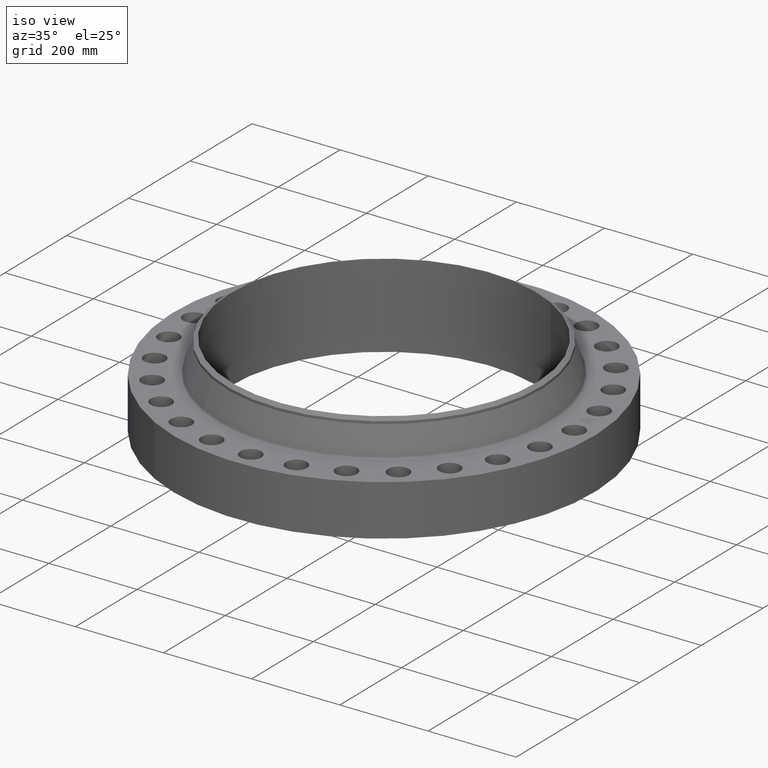
[diagram: clean part render]
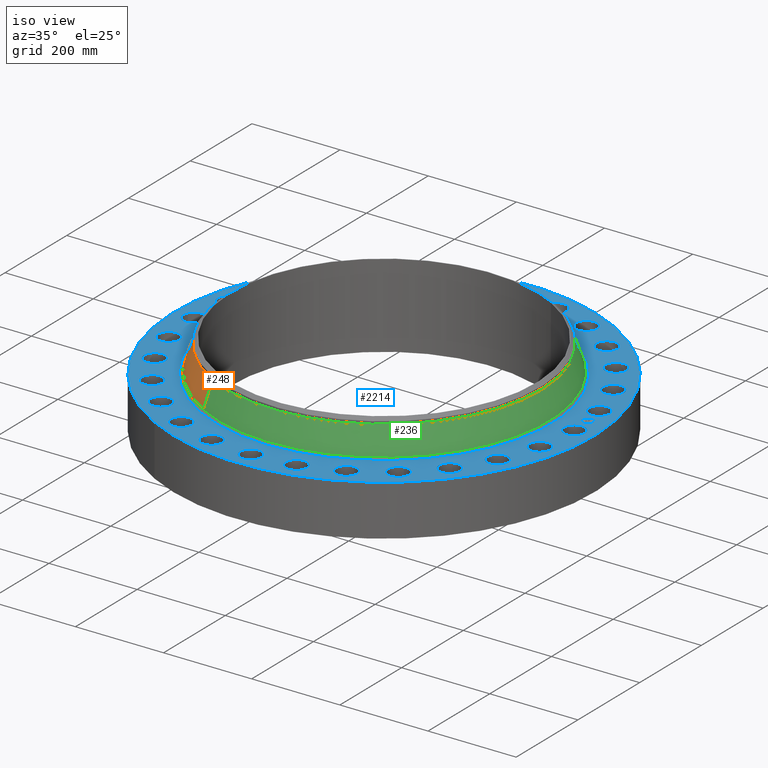
[diagram: same view with three faces highlighted in distinct colors, each labeled with its STEP entity id]
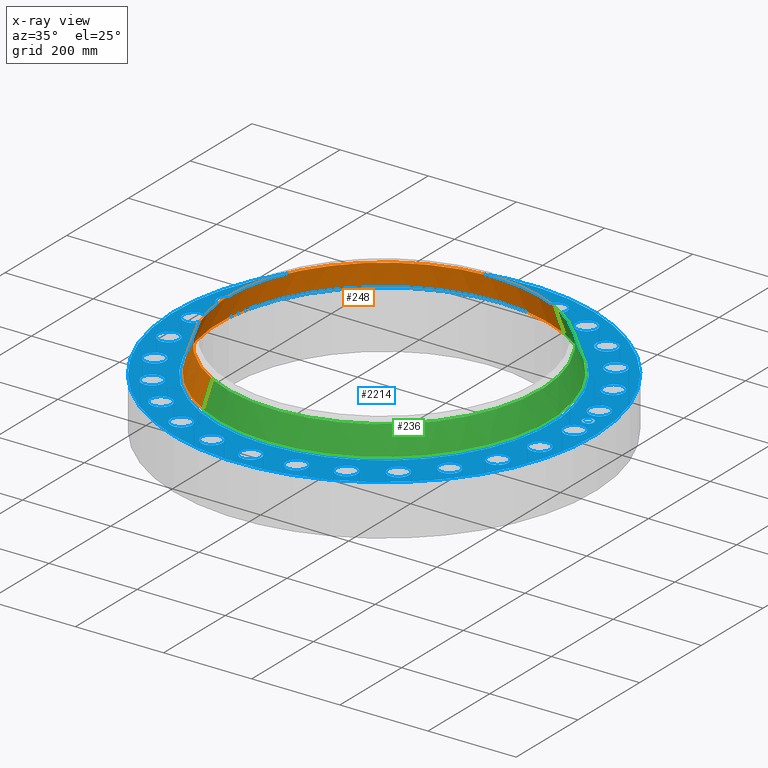
[diagram: x-ray of the same camera — body ghosted, the three highlighted faces saturated]
A machine part, iso view with three faces highlighted in distinct colors.
The next image is the same camera in x-ray (body ghosted, the three faces saturated) — at least one of them is partly hidden behind the body in this view.
Their STEP definitions:

[orange] entity #248 — the highlighted conical surface has half-angle 18.198 deg.
#196=AXIS2_PLACEMENT_3D('Circle Axis2P3D',#194,#195,$) ;
#209=AXIS2_PLACEMENT_3D('Cone Axis2P3D',#206,#207,#208) ;
#239=AXIS2_PLACEMENT_3D('Circle Axis2P3D',#237,#238,$) ;
#167=CARTESIAN_POINT('Vertex',(7.07319590626,12.9473982597,4.73192659032)) ;
#174=CARTESIAN_POINT('Vertex',(-7.07319590626,-12.9473982597,4.73192659032)) ;
#194=CARTESIAN_POINT('Axis2P3D Location',(0.,0.,4.73192659032)) ;
#206=CARTESIAN_POINT('Axis2P3D Location',(0.,0.,7.02398984384)) ;
#211=CARTESIAN_POINT('Line Origine',(6.89257672337,12.6167770631,5.87795821708)) ;
#215=CARTESIAN_POINT('Vertex',(6.71195754049,12.2861558665,7.02398984384)) ;
#222=CARTESIAN_POINT('Vertex',(-6.71195754049,-12.2861558665,7.02398984384)) ;
#225=CARTESIAN_POINT('Line Origine',(-6.89257672337,-12.6167770631,5.87795821708)) ;
#237=CARTESIAN_POINT('Axis2P3D Location',(0.,0.,7.02398984384)) ;
#195=DIRECTION('Axis2P3D Direction',(0.,0.,-0.0393700787402)) ;
#207=DIRECTION('Axis2P3D Direction',(0.,0.,-0.0393700787402)) ;
#208=DIRECTION('Axis2P3D XDirection',(-0.0188750212049,-0.0345504945626,0.)) ;
#212=DIRECTION('Vector Direction',(0.00589454905466,0.0107898996696,-0.0374010087641)) ;
#226=DIRECTION('Vector Direction',(-0.00589454905466,-0.0107898996696,-0.0374010087641)) ;
#238=DIRECTION('Axis2P3D Direction',(0.,0.,-0.0393700787402)) ;
#213=VECTOR('Line Direction',#212,0.0393700787402) ;
#227=VECTOR('Line Direction',#226,0.0393700787402) ;
#243=ORIENTED_EDGE('',*,*,#198,.F.) ;
#244=ORIENTED_EDGE('',*,*,#229,.T.) ;
#245=ORIENTED_EDGE('',*,*,#241,.T.) ;
#246=ORIENTED_EDGE('',*,*,#217,.F.) ;
#248=ADVANCED_FACE('PartBody',(#247),#210,.T.) ;
#197=CIRCLE('generated circle',#196,14.7534816916) ;
#240=CIRCLE('generated circle',#239,14.0000000001) ;
#210=CONICAL_SURFACE('Cone',#209,14.0000000001,0.317606470575) ;
#198=EDGE_CURVE('',#175,#168,#197,.T.) ;
#217=EDGE_CURVE('',#168,#216,#214,.F.) ;
#229=EDGE_CURVE('',#175,#223,#228,.F.) ;
#241=EDGE_CURVE('',#223,#216,#240,.T.) ;
#242=EDGE_LOOP('',(#243,#244,#245,#246)) ;
#247=FACE_OUTER_BOUND('',#242,.T.) ;
#214=LINE('Line',#211,#213) ;
#228=LINE('Line',#225,#227) ;
#168=VERTEX_POINT('',#167) ;
#175=VERTEX_POINT('',#174) ;
#216=VERTEX_POINT('',#215) ;
#223=VERTEX_POINT('',#222) ;

[blue] entity #2214 — the highlighted planar face has unit normal (0, 0, -1).
#65=AXIS2_PLACEMENT_3D('Circle Axis2P3D',#63,#64,$) ;
#82=AXIS2_PLACEMENT_3D('Circle Axis2P3D',#80,#81,$) ;
#115=AXIS2_PLACEMENT_3D('Circle Axis2P3D',#113,#114,$) ;
#139=AXIS2_PLACEMENT_3D('Circle Axis2P3D',#137,#138,$) ;
#156=AXIS2_PLACEMENT_3D('Circle Axis2P3D',#154,#155,$) ;
#191=AXIS2_PLACEMENT_3D('Circle Axis2P3D',#189,#190,$) ;
#931=AXIS2_PLACEMENT_3D('Circle Axis2P3D',#929,#930,$) ;
#943=AXIS2_PLACEMENT_3D('Circle Axis2P3D',#941,#942,$) ;
#974=AXIS2_PLACEMENT_3D('Circle Axis2P3D',#972,#973,$) ;
#986=AXIS2_PLACEMENT_3D('Circle Axis2P3D',#984,#985,$) ;
#1017=AXIS2_PLACEMENT_3D('Circle Axis2P3D',#1015,#1016,$) ;
#1029=AXIS2_PLACEMENT_3D('Circle Axis2P3D',#1027,#1028,$) ;
#1060=AXIS2_PLACEMENT_3D('Circle Axis2P3D',#1058,#1059,$) ;
#1072=AXIS2_PLACEMENT_3D('Circle Axis2P3D',#1070,#1071,$) ;
#1103=AXIS2_PLACEMENT_3D('Circle Axis2P3D',#1101,#1102,$) ;
#1115=AXIS2_PLACEMENT_3D('Circle Axis2P3D',#1113,#1114,$) ;
#1146=AXIS2_PLACEMENT_3D('Circle Axis2P3D',#1144,#1145,$) ;
#1158=AXIS2_PLACEMENT_3D('Circle Axis2P3D',#1156,#1157,$) ;
#1189=AXIS2_PLACEMENT_3D('Circle Axis2P3D',#1187,#1188,$) ;
#1201=AXIS2_PLACEMENT_3D('Circle Axis2P3D',#1199,#1200,$) ;
#1232=AXIS2_PLACEMENT_3D('Circle Axis2P3D',#1230,#1231,$) ;
#1244=AXIS2_PLACEMENT_3D('Circle Axis2P3D',#1242,#1243,$) ;
#1275=AXIS2_PLACEMENT_3D('Circle Axis2P3D',#1273,#1274,$) ;
#1287=AXIS2_PLACEMENT_3D('Circle Axis2P3D',#1285,#1286,$) ;
#1318=AXIS2_PLACEMENT_3D('Circle Axis2P3D',#1316,#1317,$) ;
#1330=AXIS2_PLACEMENT_3D('Circle Axis2P3D',#1328,#1329,$) ;
#1361=AXIS2_PLACEMENT_3D('Circle Axis2P3D',#1359,#1360,$) ;
#1373=AXIS2_PLACEMENT_3D('Circle Axis2P3D',#1371,#1372,$) ;
#1404=AXIS2_PLACEMENT_3D('Circle Axis2P3D',#1402,#1403,$) ;
#1416=AXIS2_PLACEMENT_3D('Circle Axis2P3D',#1414,#1415,$) ;
#1447=AXIS2_PLACEMENT_3D('Circle Axis2P3D',#1445,#1446,$) ;
#1459=AXIS2_PLACEMENT_3D('Circle Axis2P3D',#1457,#1458,$) ;
#1490=AXIS2_PLACEMENT_3D('Circle Axis2P3D',#1488,#1489,$) ;
#1502=AXIS2_PLACEMENT_3D('Circle Axis2P3D',#1500,#1501,$) ;
#1533=AXIS2_PLACEMENT_3D('Circle Axis2P3D',#1531,#1532,$) ;
#1545=AXIS2_PLACEMENT_3D('Circle Axis2P3D',#1543,#1544,$) ;
#1576=AXIS2_PLACEMENT_3D('Circle Axis2P3D',#1574,#1575,$) ;
#1588=AXIS2_PLACEMENT_3D('Circle Axis2P3D',#1586,#1587,$) ;
#1619=AXIS2_PLACEMENT_3D('Circle Axis2P3D',#1617,#1618,$) ;
#1631=AXIS2_PLACEMENT_3D('Circle Axis2P3D',#1629,#1630,$) ;
#1662=AXIS2_PLACEMENT_3D('Circle Axis2P3D',#1660,#1661,$) ;
#1674=AXIS2_PLACEMENT_3D('Circle Axis2P3D',#1672,#1673,$) ;
#1705=AXIS2_PLACEMENT_3D('Circle Axis2P3D',#1703,#1704,$) ;
#1717=AXIS2_PLACEMENT_3D('Circle Axis2P3D',#1715,#1716,$) ;
#1748=AXIS2_PLACEMENT_3D('Circle Axis2P3D',#1746,#1747,$) ;
#1760=AXIS2_PLACEMENT_3D('Circle Axis2P3D',#1758,#1759,$) ;
#1791=AXIS2_PLACEMENT_3D('Circle Axis2P3D',#1789,#1790,$) ;
#1803=AXIS2_PLACEMENT_3D('Circle Axis2P3D',#1801,#1802,$) ;
#1834=AXIS2_PLACEMENT_3D('Circle Axis2P3D',#1832,#1833,$) ;
#1846=AXIS2_PLACEMENT_3D('Circle Axis2P3D',#1844,#1845,$) ;
#1877=AXIS2_PLACEMENT_3D('Circle Axis2P3D',#1875,#1876,$) ;
#1889=AXIS2_PLACEMENT_3D('Circle Axis2P3D',#1887,#1888,$) ;
#1920=AXIS2_PLACEMENT_3D('Circle Axis2P3D',#1918,#1919,$) ;
#1932=AXIS2_PLACEMENT_3D('Circle Axis2P3D',#1930,#1931,$) ;
#1963=AXIS2_PLACEMENT_3D('Circle Axis2P3D',#1961,#1962,$) ;
#1975=AXIS2_PLACEMENT_3D('Circle Axis2P3D',#1973,#1974,$) ;
#2006=AXIS2_PLACEMENT_3D('Circle Axis2P3D',#2004,#2005,$) ;
#2018=AXIS2_PLACEMENT_3D('Circle Axis2P3D',#2016,#2017,$) ;
#2049=AXIS2_PLACEMENT_3D('Circle Axis2P3D',#2047,#2048,$) ;
#2061=AXIS2_PLACEMENT_3D('Circle Axis2P3D',#2059,#2060,$) ;
#2074=AXIS2_PLACEMENT_3D('Plane Axis2P3D',#2071,#2072,#2073) ;
#2198=AXIS2_PLACEMENT_3D('Circle Axis2P3D',#2196,#2197,$) ;
#2207=AXIS2_PLACEMENT_3D('Circle Axis2P3D',#2205,#2206,$) ;
#46=CARTESIAN_POINT('Vertex',(16.1750723919,0.45066000629,4.56000000002)) ;
#60=CARTESIAN_POINT('Vertex',(17.8249276082,-0.45066000629,4.56000000002)) ;
#63=CARTESIAN_POINT('Axis2P3D Location',(17.0000000001,0.,4.56000000002)) ;
#80=CARTESIAN_POINT('Axis2P3D Location',(17.0000000001,0.,4.56000000002)) ;
#110=CARTESIAN_POINT('Vertex',(-8.98922884886,-16.4546730355,4.56000000002)) ;
#113=CARTESIAN_POINT('Axis2P3D Location',(0.,0.,4.56000000002)) ;
#117=CARTESIAN_POINT('Vertex',(8.98922884886,16.4546730355,4.56000000002)) ;
#137=CARTESIAN_POINT('Axis2P3D Location',(0.,0.,4.56000000002)) ;
#154=CARTESIAN_POINT('Axis2P3D Location',(0.,0.,4.56000000002)) ;
#158=CARTESIAN_POINT('Vertex',(7.18705774846,13.1558209638,4.56000000002)) ;
#160=CARTESIAN_POINT('Vertex',(-7.18705774846,-13.1558209638,4.56000000002)) ;
#189=CARTESIAN_POINT('Axis2P3D Location',(0.,0.,4.56000000002)) ;
#919=CARTESIAN_POINT('Vertex',(-15.8698108419,3.15993119642,4.56000000002)) ;
#926=CARTESIAN_POINT('Vertex',(-17.2777381724,4.40578055813,4.56000000002)) ;
#929=CARTESIAN_POINT('Axis2P3D Location',(-16.5737745072,3.78285587727,4.56000000002)) ;
#941=CARTESIAN_POINT('Axis2P3D Location',(-16.5737745072,3.78285587727,4.56000000002)) ;
#962=CARTESIAN_POINT('Vertex',(14.7687707098,-6.61207025421,4.56000000002)) ;
#969=CARTESIAN_POINT('Vertex',(15.864170799,-8.13997687584,4.56000000002)) ;
#972=CARTESIAN_POINT('Axis2P3D Location',(15.3164707544,-7.37602356503,4.56000000002)) ;
#984=CARTESIAN_POINT('Axis2P3D Location',(15.3164707544,-7.37602356503,4.56000000002)) ;
#1005=CARTESIAN_POINT('Vertex',(-14.7687707098,6.61207025421,4.56000000002)) ;
#1012=CARTESIAN_POINT('Vertex',(-15.864170799,8.13997687584,4.56000000002)) ;
#1015=CARTESIAN_POINT('Axis2P3D Location',(-15.3164707544,7.37602356503,4.56000000002)) ;
#1027=CARTESIAN_POINT('Axis2P3D Location',(-15.3164707544,7.37602356503,4.56000000002)) ;
#1048=CARTESIAN_POINT('Vertex',(12.9271627452,-9.73265249986,4.56000000002)) ;
#1055=CARTESIAN_POINT('Vertex',(13.6551076588,-11.4660007634,4.56000000002)) ;
#1058=CARTESIAN_POINT('Axis2P3D Location',(13.291135202,-10.5993266316,4.56000000002)) ;
#1070=CARTESIAN_POINT('Axis2P3D Location',(13.291135202,-10.5993266316,4.56000000002)) ;
#1091=CARTESIAN_POINT('Vertex',(-12.9271627452,9.73265249986,4.56000000002)) ;
#1098=CARTESIAN_POINT('Vertex',(-13.6551076588,11.4660007634,4.56000000002)) ;
#1101=CARTESIAN_POINT('Axis2P3D Location',(-13.291135202,10.5993266316,4.56000000002)) ;
#1113=CARTESIAN_POINT('Axis2P3D Location',(-13.291135202,10.5993266316,4.56000000002)) ;
#1134=CARTESIAN_POINT('Vertex',(10.4373328615,-12.3651989092,4.56000000002)) ;
#1141=CARTESIAN_POINT('Vertex',(10.7613204018,-14.2170714949,4.56000000002)) ;
#1144=CARTESIAN_POINT('Axis2P3D Location',(10.5993266316,-13.291135202,4.56000000002)) ;
#1156=CARTESIAN_POINT('Axis2P3D Location',(10.5993266316,-13.291135202,4.56000000002)) ;
#1177=CARTESIAN_POINT('Vertex',(-10.4373328615,12.3651989092,4.56000000002)) ;
#1184=CARTESIAN_POINT('Vertex',(-10.7613204018,14.2170714949,4.56000000002)) ;
#1187=CARTESIAN_POINT('Axis2P3D Location',(-10.5993266316,13.291135202,4.56000000002)) ;
#1199=CARTESIAN_POINT('Axis2P3D Location',(-10.5993266316,13.291135202,4.56000000002)) ;
#1220=CARTESIAN_POINT('Vertex',(7.42413152557,-14.3777026126,4.56000000002)) ;
#1227=CARTESIAN_POINT('Vertex',(7.32791560449,-16.2552388962,4.56000000002)) ;
#1230=CARTESIAN_POINT('Axis2P3D Location',(7.37602356503,-15.3164707544,4.56000000002)) ;
#1242=CARTESIAN_POINT('Axis2P3D Location',(7.37602356503,-15.3164707544,4.56000000002)) ;
#1263=CARTESIAN_POINT('Vertex',(-7.42413152557,14.3777026126,4.56000000002)) ;
#1270=CARTESIAN_POINT('Vertex',(-7.32791560449,16.2552388962,4.56000000002)) ;
#1273=CARTESIAN_POINT('Axis2P3D Location',(-7.37602356503,15.3164707544,4.56000000002)) ;
#1285=CARTESIAN_POINT('Axis2P3D Location',(-7.37602356503,15.3164707544,4.56000000002)) ;
#1306=CARTESIAN_POINT('Vertex',(4.03865323449,-15.6692482709,4.56000000002)) ;
#1313=CARTESIAN_POINT('Vertex',(3.52705852006,-17.4783007434,4.56000000002)) ;
#1316=CARTESIAN_POINT('Axis2P3D Location',(3.78285587727,-16.5737745072,4.56000000002)) ;
#1328=CARTESIAN_POINT('Axis2P3D Location',(3.78285587727,-16.5737745072,4.56000000002)) ;
#1349=CARTESIAN_POINT('Vertex',(-4.03865323449,15.6692482709,4.56000000002)) ;
#1356=CARTESIAN_POINT('Vertex',(-3.52705852006,17.4783007434,4.56000000002)) ;
#1359=CARTESIAN_POINT('Axis2P3D Location',(-3.78285587727,16.5737745072,4.56000000002)) ;
#1371=CARTESIAN_POINT('Axis2P3D Location',(-3.78285587727,16.5737745072,4.56000000002)) ;
#1392=CARTESIAN_POINT('Vertex',(0.45066000629,-16.1750723919,4.56000000002)) ;
#1399=CARTESIAN_POINT('Vertex',(-0.45066000629,-17.8249276082,4.56000000002)) ;
#1402=CARTESIAN_POINT('Axis2P3D Location',(2.57777818661E-015,-17.0000000001,4.56000000002)) ;
#1414=CARTESIAN_POINT('Axis2P3D Location',(2.57777818661E-015,-17.0000000001,4.56000000002)) ;
#1435=CARTESIAN_POINT('Vertex',(-0.45066000629,16.1750723919,4.56000000002)) ;
#1442=CARTESIAN_POINT('Vertex',(0.45066000629,17.8249276082,4.56000000002)) ;
#1445=CARTESIAN_POINT('Axis2P3D Location',(-8.84919461428E-016,17.0000000001,4.56000000002)) ;
#1457=CARTESIAN_POINT('Axis2P3D Location',(-8.84919461428E-016,17.0000000001,4.56000000002)) ;
#1478=CARTESIAN_POINT('Vertex',(-3.15993119642,-15.8698108419,4.56000000002)) ;
#1485=CARTESIAN_POINT('Vertex',(-4.40578055813,-17.2777381724,4.56000000002)) ;
#1488=CARTESIAN_POINT('Axis2P3D Location',(-3.78285587727,-16.5737745072,4.56000000002)) ;
#1500=CARTESIAN_POINT('Axis2P3D Location',(-3.78285587727,-16.5737745072,4.56000000002)) ;
#1521=CARTESIAN_POINT('Vertex',(3.15993119642,15.8698108419,4.56000000002)) ;
#1528=CARTESIAN_POINT('Vertex',(4.40578055813,17.2777381724,4.56000000002)) ;
#1531=CARTESIAN_POINT('Axis2P3D Location',(3.78285587727,16.5737745072,4.56000000002)) ;
#1543=CARTESIAN_POINT('Axis2P3D Location',(3.78285587727,16.5737745072,4.56000000002)) ;
#1564=CARTESIAN_POINT('Vertex',(-6.61207025421,-14.7687707098,4.56000000002)) ;
#1571=CARTESIAN_POINT('Vertex',(-8.13997687584,-15.864170799,4.56000000002)) ;
#1574=CARTESIAN_POINT('Axis2P3D Location',(-7.37602356503,-15.3164707544,4.56000000002)) ;
#1586=CARTESIAN_POINT('Axis2P3D Location',(-7.37602356503,-15.3164707544,4.56000000002)) ;
#1607=CARTESIAN_POINT('Vertex',(6.61207025421,14.7687707098,4.56000000002)) ;
#1614=CARTESIAN_POINT('Vertex',(8.13997687584,15.864170799,4.56000000002)) ;
#1617=CARTESIAN_POINT('Axis2P3D Location',(7.37602356503,15.3164707544,4.56000000002)) ;
#1629=CARTESIAN_POINT('Axis2P3D Location',(7.37602356503,15.3164707544,4.56000000002)) ;
#1650=CARTESIAN_POINT('Vertex',(-9.73265249986,-12.9271627452,4.56000000002)) ;
#1657=CARTESIAN_POINT('Vertex',(-11.4660007634,-13.6551076588,4.56000000002)) ;
#1660=CARTESIAN_POINT('Axis2P3D Location',(-10.5993266316,-13.291135202,4.56000000002)) ;
#1672=CARTESIAN_POINT('Axis2P3D Location',(-10.5993266316,-13.291135202,4.56000000002)) ;
#1693=CARTESIAN_POINT('Vertex',(9.73265249986,12.9271627452,4.56000000002)) ;
#1700=CARTESIAN_POINT('Vertex',(11.4660007634,13.6551076588,4.56000000002)) ;
#1703=CARTESIAN_POINT('Axis2P3D Location',(10.5993266316,13.291135202,4.56000000002)) ;
#1715=CARTESIAN_POINT('Axis2P3D Location',(10.5993266316,13.291135202,4.56000000002)) ;
#1736=CARTESIAN_POINT('Vertex',(-12.3651989092,-10.4373328615,4.56000000002)) ;
#1743=CARTESIAN_POINT('Vertex',(-14.2170714949,-10.7613204018,4.56000000002)) ;
#1746=CARTESIAN_POINT('Axis2P3D Location',(-13.291135202,-10.5993266316,4.56000000002)) ;
#1758=CARTESIAN_POINT('Axis2P3D Location',(-13.291135202,-10.5993266316,4.56000000002)) ;
#1779=CARTESIAN_POINT('Vertex',(12.3651989092,10.4373328615,4.56000000002)) ;
#1786=CARTESIAN_POINT('Vertex',(14.2170714949,10.7613204018,4.56000000002)) ;
#1789=CARTESIAN_POINT('Axis2P3D Location',(13.291135202,10.5993266316,4.56000000002)) ;
#1801=CARTESIAN_POINT('Axis2P3D Location',(13.291135202,10.5993266316,4.56000000002)) ;
#1822=CARTESIAN_POINT('Vertex',(-14.3777026126,-7.42413152557,4.56000000002)) ;
#1829=CARTESIAN_POINT('Vertex',(-16.2552388962,-7.32791560449,4.56000000002)) ;
#1832=CARTESIAN_POINT('Axis2P3D Location',(-15.3164707544,-7.37602356503,4.56000000002)) ;
#1844=CARTESIAN_POINT('Axis2P3D Location',(-15.3164707544,-7.37602356503,4.56000000002)) ;
#1865=CARTESIAN_POINT('Vertex',(14.3777026126,7.42413152557,4.56000000002)) ;
#1872=CARTESIAN_POINT('Vertex',(16.2552388962,7.32791560449,4.56000000002)) ;
#1875=CARTESIAN_POINT('Axis2P3D Location',(15.3164707544,7.37602356503,4.56000000002)) ;
#1887=CARTESIAN_POINT('Axis2P3D Location',(15.3164707544,7.37602356503,4.56000000002)) ;
#1908=CARTESIAN_POINT('Vertex',(-15.6692482709,-4.03865323449,4.56000000002)) ;
#1915=CARTESIAN_POINT('Vertex',(-17.4783007434,-3.52705852006,4.56000000002)) ;
#1918=CARTESIAN_POINT('Axis2P3D Location',(-16.5737745072,-3.78285587727,4.56000000002)) ;
#1930=CARTESIAN_POINT('Axis2P3D Location',(-16.5737745072,-3.78285587727,4.56000000002)) ;
#1951=CARTESIAN_POINT('Vertex',(15.6692482709,4.03865323449,4.56000000002)) ;
#1958=CARTESIAN_POINT('Vertex',(17.4783007434,3.52705852006,4.56000000002)) ;
#1961=CARTESIAN_POINT('Axis2P3D Location',(16.5737745072,3.78285587727,4.56000000002)) ;
#1973=CARTESIAN_POINT('Axis2P3D Location',(16.5737745072,3.78285587727,4.56000000002)) ;
#1994=CARTESIAN_POINT('Vertex',(-16.1750723919,-0.45066000629,4.56000000002)) ;
#2001=CARTESIAN_POINT('Vertex',(-17.8249276082,0.45066000629,4.56000000002)) ;
#2004=CARTESIAN_POINT('Axis2P3D Location',(-17.0000000001,-9.63141612604E-015,4.56000000002)) ;
#2016=CARTESIAN_POINT('Axis2P3D Location',(-17.0000000001,-9.63141612604E-015,4.56000000002)) ;
#2037=CARTESIAN_POINT('Vertex',(15.8698108419,-3.15993119642,4.56000000002)) ;
#2044=CARTESIAN_POINT('Vertex',(17.2777381724,-4.40578055813,4.56000000002)) ;
#2047=CARTESIAN_POINT('Axis2P3D Location',(16.5737745072,-3.78285587727,4.56000000002)) ;
#2059=CARTESIAN_POINT('Axis2P3D Location',(16.5737745072,-3.78285587727,4.56000000002)) ;
#2071=CARTESIAN_POINT('Axis2P3D Location',(0.,18.7500000001,4.56000000002)) ;
#2196=CARTESIAN_POINT('Axis2P3D Location',(16.8931075683,1.90339609376,4.56000000002)) ;
#2200=CARTESIAN_POINT('Vertex',(16.8371254585,2.40025105992,4.56000000002)) ;
#2202=CARTESIAN_POINT('Vertex',(16.949089678,1.40654112761,4.56000000002)) ;
#2205=CARTESIAN_POINT('Axis2P3D Location',(16.8931075683,1.90339609376,4.56000000002)) ;
#64=DIRECTION('Axis2P3D Direction',(0.,-0.,-0.0393700787402)) ;
#81=DIRECTION('Axis2P3D Direction',(0.,-0.,-0.0393700787402)) ;
#114=DIRECTION('Axis2P3D Direction',(0.,0.,-0.0393700787402)) ;
#138=DIRECTION('Axis2P3D Direction',(0.,0.,-0.0393700787402)) ;
#155=DIRECTION('Axis2P3D Direction',(0.,0.,-0.0393700787402)) ;
#190=DIRECTION('Axis2P3D Direction',(0.,0.,-0.0393700787402)) ;
#930=DIRECTION('Axis2P3D Direction',(0.,0.,-0.0393700787402)) ;
#942=DIRECTION('Axis2P3D Direction',(0.,0.,-0.0393700787402)) ;
#973=DIRECTION('Axis2P3D Direction',(0.,-0.,-0.0393700787402)) ;
#985=DIRECTION('Axis2P3D Direction',(0.,-0.,-0.0393700787402)) ;
#1016=DIRECTION('Axis2P3D Direction',(0.,0.,-0.0393700787402)) ;
#1028=DIRECTION('Axis2P3D Direction',(0.,0.,-0.0393700787402)) ;
#1059=DIRECTION('Axis2P3D Direction',(0.,-0.,-0.0393700787402)) ;
#1071=DIRECTION('Axis2P3D Direction',(0.,-0.,-0.0393700787402)) ;
#1102=DIRECTION('Axis2P3D Direction',(0.,0.,-0.0393700787402)) ;
#1114=DIRECTION('Axis2P3D Direction',(0.,0.,-0.0393700787402)) ;
#1145=DIRECTION('Axis2P3D Direction',(0.,-0.,-0.0393700787402)) ;
#1157=DIRECTION('Axis2P3D Direction',(0.,-0.,-0.0393700787402)) ;
#1188=DIRECTION('Axis2P3D Direction',(0.,0.,-0.0393700787402)) ;
#1200=DIRECTION('Axis2P3D Direction',(0.,0.,-0.0393700787402)) ;
#1231=DIRECTION('Axis2P3D Direction',(0.,-0.,-0.0393700787402)) ;
#1243=DIRECTION('Axis2P3D Direction',(0.,-0.,-0.0393700787402)) ;
#1274=DIRECTION('Axis2P3D Direction',(0.,0.,-0.0393700787402)) ;
#1286=DIRECTION('Axis2P3D Direction',(0.,0.,-0.0393700787402)) ;
#1317=DIRECTION('Axis2P3D Direction',(0.,-0.,-0.0393700787402)) ;
#1329=DIRECTION('Axis2P3D Direction',(0.,-0.,-0.0393700787402)) ;
#1360=DIRECTION('Axis2P3D Direction',(0.,0.,-0.0393700787402)) ;
#1372=DIRECTION('Axis2P3D Direction',(0.,0.,-0.0393700787402)) ;
#1403=DIRECTION('Axis2P3D Direction',(0.,-0.,-0.0393700787402)) ;
#1415=DIRECTION('Axis2P3D Direction',(0.,-0.,-0.0393700787402)) ;
#1446=DIRECTION('Axis2P3D Direction',(0.,0.,-0.0393700787402)) ;
#1458=DIRECTION('Axis2P3D Direction',(0.,0.,-0.0393700787402)) ;
#1489=DIRECTION('Axis2P3D Direction',(-0.,0.,-0.0393700787402)) ;
#1501=DIRECTION('Axis2P3D Direction',(-0.,0.,-0.0393700787402)) ;
#1532=DIRECTION('Axis2P3D Direction',(0.,0.,-0.0393700787402)) ;
#1544=DIRECTION('Axis2P3D Direction',(0.,0.,-0.0393700787402)) ;
#1575=DIRECTION('Axis2P3D Direction',(-0.,0.,-0.0393700787402)) ;
#1587=DIRECTION('Axis2P3D Direction',(-0.,0.,-0.0393700787402)) ;
#1618=DIRECTION('Axis2P3D Direction',(0.,0.,-0.0393700787402)) ;
#1630=DIRECTION('Axis2P3D Direction',(0.,0.,-0.0393700787402)) ;
#1661=DIRECTION('Axis2P3D Direction',(-0.,0.,-0.0393700787402)) ;
#1673=DIRECTION('Axis2P3D Direction',(-0.,0.,-0.0393700787402)) ;
#1704=DIRECTION('Axis2P3D Direction',(0.,0.,-0.0393700787402)) ;
#1716=DIRECTION('Axis2P3D Direction',(0.,0.,-0.0393700787402)) ;
#1747=DIRECTION('Axis2P3D Direction',(-0.,0.,-0.0393700787402)) ;
#1759=DIRECTION('Axis2P3D Direction',(-0.,0.,-0.0393700787402)) ;
#1790=DIRECTION('Axis2P3D Direction',(0.,0.,-0.0393700787402)) ;
#1802=DIRECTION('Axis2P3D Direction',(0.,0.,-0.0393700787402)) ;
#1833=DIRECTION('Axis2P3D Direction',(-0.,0.,-0.0393700787402)) ;
#1845=DIRECTION('Axis2P3D Direction',(-0.,0.,-0.0393700787402)) ;
#1876=DIRECTION('Axis2P3D Direction',(0.,0.,-0.0393700787402)) ;
#1888=DIRECTION('Axis2P3D Direction',(0.,0.,-0.0393700787402)) ;
#1919=DIRECTION('Axis2P3D Direction',(-0.,0.,-0.0393700787402)) ;
#1931=DIRECTION('Axis2P3D Direction',(-0.,0.,-0.0393700787402)) ;
#1962=DIRECTION('Axis2P3D Direction',(0.,0.,-0.0393700787402)) ;
#1974=DIRECTION('Axis2P3D Direction',(0.,0.,-0.0393700787402)) ;
#2005=DIRECTION('Axis2P3D Direction',(-0.,0.,-0.0393700787402)) ;
#2017=DIRECTION('Axis2P3D Direction',(-0.,0.,-0.0393700787402)) ;
#2048=DIRECTION('Axis2P3D Direction',(0.,-0.,-0.0393700787402)) ;
#2060=DIRECTION('Axis2P3D Direction',(0.,-0.,-0.0393700787402)) ;
#2072=DIRECTION('Axis2P3D Direction',(0.,0.,-0.0393700787402)) ;
#2073=DIRECTION('Axis2P3D XDirection',(0.0393700787402,0.,0.)) ;
#2197=DIRECTION('Axis2P3D Direction',(0.,0.,-0.0393700787402)) ;
#2206=DIRECTION('Axis2P3D Direction',(0.,0.,-0.0393700787402)) ;
#2077=ORIENTED_EDGE('',*,*,#141,.F.) ;
#2078=ORIENTED_EDGE('',*,*,#119,.F.) ;
#2081=ORIENTED_EDGE('',*,*,#67,.T.) ;
#2082=ORIENTED_EDGE('',*,*,#84,.T.) ;
#2085=ORIENTED_EDGE('',*,*,#193,.T.) ;
#2086=ORIENTED_EDGE('',*,*,#162,.T.) ;
#2089=ORIENTED_EDGE('',*,*,#2063,.T.) ;
#2090=ORIENTED_EDGE('',*,*,#2051,.T.) ;
#2093=ORIENTED_EDGE('',*,*,#988,.T.) ;
#2094=ORIENTED_EDGE('',*,*,#976,.T.) ;
#2097=ORIENTED_EDGE('',*,*,#1074,.T.) ;
#2098=ORIENTED_EDGE('',*,*,#1062,.T.) ;
#2101=ORIENTED_EDGE('',*,*,#1160,.T.) ;
#2102=ORIENTED_EDGE('',*,*,#1148,.T.) ;
#2105=ORIENTED_EDGE('',*,*,#1246,.T.) ;
#2106=ORIENTED_EDGE('',*,*,#1234,.T.) ;
#2109=ORIENTED_EDGE('',*,*,#1332,.T.) ;
#2110=ORIENTED_EDGE('',*,*,#1320,.T.) ;
#2113=ORIENTED_EDGE('',*,*,#1418,.T.) ;
#2114=ORIENTED_EDGE('',*,*,#1406,.T.) ;
#2117=ORIENTED_EDGE('',*,*,#1504,.T.) ;
#2118=ORIENTED_EDGE('',*,*,#1492,.T.) ;
#2121=ORIENTED_EDGE('',*,*,#1590,.T.) ;
#2122=ORIENTED_EDGE('',*,*,#1578,.T.) ;
#2125=ORIENTED_EDGE('',*,*,#1676,.T.) ;
#2126=ORIENTED_EDGE('',*,*,#1664,.T.) ;
#2129=ORIENTED_EDGE('',*,*,#1762,.T.) ;
#2130=ORIENTED_EDGE('',*,*,#1750,.T.) ;
#2133=ORIENTED_EDGE('',*,*,#1848,.T.) ;
#2134=ORIENTED_EDGE('',*,*,#1836,.T.) ;
#2137=ORIENTED_EDGE('',*,*,#1934,.T.) ;
#2138=ORIENTED_EDGE('',*,*,#1922,.T.) ;
#2141=ORIENTED_EDGE('',*,*,#2020,.T.) ;
#2142=ORIENTED_EDGE('',*,*,#2008,.T.) ;
#2145=ORIENTED_EDGE('',*,*,#945,.T.) ;
#2146=ORIENTED_EDGE('',*,*,#933,.T.) ;
#2149=ORIENTED_EDGE('',*,*,#1031,.T.) ;
#2150=ORIENTED_EDGE('',*,*,#1019,.T.) ;
#2153=ORIENTED_EDGE('',*,*,#1117,.T.) ;
#2154=ORIENTED_EDGE('',*,*,#1105,.T.) ;
#2157=ORIENTED_EDGE('',*,*,#1203,.T.) ;
#2158=ORIENTED_EDGE('',*,*,#1191,.T.) ;
#2161=ORIENTED_EDGE('',*,*,#1289,.T.) ;
#2162=ORIENTED_EDGE('',*,*,#1277,.T.) ;
#2165=ORIENTED_EDGE('',*,*,#1375,.T.) ;
#2166=ORIENTED_EDGE('',*,*,#1363,.T.) ;
#2169=ORIENTED_EDGE('',*,*,#1461,.T.) ;
#2170=ORIENTED_EDGE('',*,*,#1449,.T.) ;
#2173=ORIENTED_EDGE('',*,*,#1547,.T.) ;
#2174=ORIENTED_EDGE('',*,*,#1535,.T.) ;
#2177=ORIENTED_EDGE('',*,*,#1633,.T.) ;
#2178=ORIENTED_EDGE('',*,*,#1621,.T.) ;
#2181=ORIENTED_EDGE('',*,*,#1719,.T.) ;
#2182=ORIENTED_EDGE('',*,*,#1707,.T.) ;
#2185=ORIENTED_EDGE('',*,*,#1805,.T.) ;
#2186=ORIENTED_EDGE('',*,*,#1793,.T.) ;
#2189=ORIENTED_EDGE('',*,*,#1891,.T.) ;
#2190=ORIENTED_EDGE('',*,*,#1879,.T.) ;
#2193=ORIENTED_EDGE('',*,*,#1977,.T.) ;
#2194=ORIENTED_EDGE('',*,*,#1965,.T.) ;
#2211=ORIENTED_EDGE('',*,*,#2204,.T.) ;
#2212=ORIENTED_EDGE('',*,*,#2209,.T.) ;
#2083=FACE_BOUND('',#2080,.T.) ;
#2087=FACE_BOUND('',#2084,.T.) ;
#2091=FACE_BOUND('',#2088,.T.) ;
#2095=FACE_BOUND('',#2092,.T.) ;
#2099=FACE_BOUND('',#2096,.T.) ;
#2103=FACE_BOUND('',#2100,.T.) ;
#2107=FACE_BOUND('',#2104,.T.) ;
#2111=FACE_BOUND('',#2108,.T.) ;
#2115=FACE_BOUND('',#2112,.T.) ;
#2119=FACE_BOUND('',#2116,.T.) ;
#2123=FACE_BOUND('',#2120,.T.) ;
#2127=FACE_BOUND('',#2124,.T.) ;
#2131=FACE_BOUND('',#2128,.T.) ;
#2135=FACE_BOUND('',#2132,.T.) ;
#2139=FACE_BOUND('',#2136,.T.) ;
#2143=FACE_BOUND('',#2140,.T.) ;
#2147=FACE_BOUND('',#2144,.T.) ;
#2151=FACE_BOUND('',#2148,.T.) ;
#2155=FACE_BOUND('',#2152,.T.) ;
#2159=FACE_BOUND('',#2156,.T.) ;
#2163=FACE_BOUND('',#2160,.T.) ;
#2167=FACE_BOUND('',#2164,.T.) ;
#2171=FACE_BOUND('',#2168,.T.) ;
#2175=FACE_BOUND('',#2172,.T.) ;
#2179=FACE_BOUND('',#2176,.T.) ;
#2183=FACE_BOUND('',#2180,.T.) ;
#2187=FACE_BOUND('',#2184,.T.) ;
#2191=FACE_BOUND('',#2188,.T.) ;
#2195=FACE_BOUND('',#2192,.T.) ;
#2213=FACE_BOUND('',#2210,.T.) ;
#2214=ADVANCED_FACE('PartBody',(#2079,#2083,#2087,#2091,#2095,#2099,#2103,#2107,#2111,#2115,#2119,#2123,#2127,#2131,#2135,#2139,#2143,#2147,#2151,#2155,#2159,#2163,#2167,#2171,#2175,#2179,#2183,#2187,#2191,#2195,#2213),#2075,.F.) ;
#66=CIRCLE('generated circle',#65,0.940000000004) ;
#83=CIRCLE('generated circle',#82,0.940000000004) ;
#116=CIRCLE('generated circle',#115,18.7500000001) ;
#140=CIRCLE('generated circle',#139,18.7500000001) ;
#157=CIRCLE('generated circle',#156,14.9909780972) ;
#192=CIRCLE('generated circle',#191,14.9909780972) ;
#932=CIRCLE('generated circle',#931,0.940000000004) ;
#944=CIRCLE('generated circle',#943,0.940000000004) ;
#975=CIRCLE('generated circle',#974,0.940000000004) ;
#987=CIRCLE('generated circle',#986,0.940000000004) ;
#1018=CIRCLE('generated circle',#1017,0.940000000004) ;
#1030=CIRCLE('generated circle',#1029,0.940000000004) ;
#1061=CIRCLE('generated circle',#1060,0.940000000004) ;
#1073=CIRCLE('generated circle',#1072,0.940000000004) ;
#1104=CIRCLE('generated circle',#1103,0.940000000004) ;
#1116=CIRCLE('generated circle',#1115,0.940000000004) ;
#1147=CIRCLE('generated circle',#1146,0.940000000004) ;
#1159=CIRCLE('generated circle',#1158,0.940000000004) ;
#1190=CIRCLE('generated circle',#1189,0.940000000004) ;
#1202=CIRCLE('generated circle',#1201,0.940000000004) ;
#1233=CIRCLE('generated circle',#1232,0.940000000004) ;
#1245=CIRCLE('generated circle',#1244,0.940000000004) ;
#1276=CIRCLE('generated circle',#1275,0.940000000004) ;
#1288=CIRCLE('generated circle',#1287,0.940000000004) ;
#1319=CIRCLE('generated circle',#1318,0.940000000004) ;
#1331=CIRCLE('generated circle',#1330,0.940000000004) ;
#1362=CIRCLE('generated circle',#1361,0.940000000004) ;
#1374=CIRCLE('generated circle',#1373,0.940000000004) ;
#1405=CIRCLE('generated circle',#1404,0.940000000004) ;
#1417=CIRCLE('generated circle',#1416,0.940000000004) ;
#1448=CIRCLE('generated circle',#1447,0.940000000004) ;
#1460=CIRCLE('generated circle',#1459,0.940000000004) ;
#1491=CIRCLE('generated circle',#1490,0.940000000004) ;
#1503=CIRCLE('generated circle',#1502,0.940000000004) ;
#1534=CIRCLE('generated circle',#1533,0.940000000004) ;
#1546=CIRCLE('generated circle',#1545,0.940000000004) ;
#1577=CIRCLE('generated circle',#1576,0.940000000004) ;
#1589=CIRCLE('generated circle',#1588,0.940000000004) ;
#1620=CIRCLE('generated circle',#1619,0.940000000004) ;
#1632=CIRCLE('generated circle',#1631,0.940000000004) ;
#1663=CIRCLE('generated circle',#1662,0.940000000004) ;
#1675=CIRCLE('generated circle',#1674,0.940000000004) ;
#1706=CIRCLE('generated circle',#1705,0.940000000004) ;
#1718=CIRCLE('generated circle',#1717,0.940000000004) ;
#1749=CIRCLE('generated circle',#1748,0.940000000004) ;
#1761=CIRCLE('generated circle',#1760,0.940000000004) ;
#1792=CIRCLE('generated circle',#1791,0.940000000004) ;
#1804=CIRCLE('generated circle',#1803,0.940000000004) ;
#1835=CIRCLE('generated circle',#1834,0.940000000004) ;
#1847=CIRCLE('generated circle',#1846,0.940000000004) ;
#1878=CIRCLE('generated circle',#1877,0.940000000004) ;
#1890=CIRCLE('generated circle',#1889,0.940000000004) ;
#1921=CIRCLE('generated circle',#1920,0.940000000004) ;
#1933=CIRCLE('generated circle',#1932,0.940000000004) ;
#1964=CIRCLE('generated circle',#1963,0.940000000004) ;
#1976=CIRCLE('generated circle',#1975,0.940000000004) ;
#2007=CIRCLE('generated circle',#2006,0.940000000004) ;
#2019=CIRCLE('generated circle',#2018,0.940000000004) ;
#2050=CIRCLE('generated circle',#2049,0.940000000004) ;
#2062=CIRCLE('generated circle',#2061,0.940000000004) ;
#2199=CIRCLE('generated circle',#2198,0.499998853999) ;
#2208=CIRCLE('generated circle',#2207,0.499998853999) ;
#67=EDGE_CURVE('',#47,#61,#66,.T.) ;
#84=EDGE_CURVE('',#61,#47,#83,.T.) ;
#119=EDGE_CURVE('',#111,#118,#116,.T.) ;
#141=EDGE_CURVE('',#118,#111,#140,.T.) ;
#162=EDGE_CURVE('',#159,#161,#157,.T.) ;
#193=EDGE_CURVE('',#161,#159,#192,.T.) ;
#933=EDGE_CURVE('',#920,#927,#932,.T.) ;
#945=EDGE_CURVE('',#927,#920,#944,.T.) ;
#976=EDGE_CURVE('',#963,#970,#975,.T.) ;
#988=EDGE_CURVE('',#970,#963,#987,.T.) ;
#1019=EDGE_CURVE('',#1006,#1013,#1018,.T.) ;
#1031=EDGE_CURVE('',#1013,#1006,#1030,.T.) ;
#1062=EDGE_CURVE('',#1049,#1056,#1061,.T.) ;
#1074=EDGE_CURVE('',#1056,#1049,#1073,.T.) ;
#1105=EDGE_CURVE('',#1092,#1099,#1104,.T.) ;
#1117=EDGE_CURVE('',#1099,#1092,#1116,.T.) ;
#1148=EDGE_CURVE('',#1135,#1142,#1147,.T.) ;
#1160=EDGE_CURVE('',#1142,#1135,#1159,.T.) ;
#1191=EDGE_CURVE('',#1178,#1185,#1190,.T.) ;
#1203=EDGE_CURVE('',#1185,#1178,#1202,.T.) ;
#1234=EDGE_CURVE('',#1221,#1228,#1233,.T.) ;
#1246=EDGE_CURVE('',#1228,#1221,#1245,.T.) ;
#1277=EDGE_CURVE('',#1264,#1271,#1276,.T.) ;
#1289=EDGE_CURVE('',#1271,#1264,#1288,.T.) ;
#1320=EDGE_CURVE('',#1307,#1314,#1319,.T.) ;
#1332=EDGE_CURVE('',#1314,#1307,#1331,.T.) ;
#1363=EDGE_CURVE('',#1350,#1357,#1362,.T.) ;
#1375=EDGE_CURVE('',#1357,#1350,#1374,.T.) ;
#1406=EDGE_CURVE('',#1393,#1400,#1405,.T.) ;
#1418=EDGE_CURVE('',#1400,#1393,#1417,.T.) ;
#1449=EDGE_CURVE('',#1436,#1443,#1448,.T.) ;
#1461=EDGE_CURVE('',#1443,#1436,#1460,.T.) ;
#1492=EDGE_CURVE('',#1479,#1486,#1491,.T.) ;
#1504=EDGE_CURVE('',#1486,#1479,#1503,.T.) ;
#1535=EDGE_CURVE('',#1522,#1529,#1534,.T.) ;
#1547=EDGE_CURVE('',#1529,#1522,#1546,.T.) ;
#1578=EDGE_CURVE('',#1565,#1572,#1577,.T.) ;
#1590=EDGE_CURVE('',#1572,#1565,#1589,.T.) ;
#1621=EDGE_CURVE('',#1608,#1615,#1620,.T.) ;
#1633=EDGE_CURVE('',#1615,#1608,#1632,.T.) ;
#1664=EDGE_CURVE('',#1651,#1658,#1663,.T.) ;
#1676=EDGE_CURVE('',#1658,#1651,#1675,.T.) ;
#1707=EDGE_CURVE('',#1694,#1701,#1706,.T.) ;
#1719=EDGE_CURVE('',#1701,#1694,#1718,.T.) ;
#1750=EDGE_CURVE('',#1737,#1744,#1749,.T.) ;
#1762=EDGE_CURVE('',#1744,#1737,#1761,.T.) ;
#1793=EDGE_CURVE('',#1780,#1787,#1792,.T.) ;
#1805=EDGE_CURVE('',#1787,#1780,#1804,.T.) ;
#1836=EDGE_CURVE('',#1823,#1830,#1835,.T.) ;
#1848=EDGE_CURVE('',#1830,#1823,#1847,.T.) ;
#1879=EDGE_CURVE('',#1866,#1873,#1878,.T.) ;
#1891=EDGE_CURVE('',#1873,#1866,#1890,.T.) ;
#1922=EDGE_CURVE('',#1909,#1916,#1921,.T.) ;
#1934=EDGE_CURVE('',#1916,#1909,#1933,.T.) ;
#1965=EDGE_CURVE('',#1952,#1959,#1964,.T.) ;
#1977=EDGE_CURVE('',#1959,#1952,#1976,.T.) ;
#2008=EDGE_CURVE('',#1995,#2002,#2007,.T.) ;
#2020=EDGE_CURVE('',#2002,#1995,#2019,.T.) ;
#2051=EDGE_CURVE('',#2038,#2045,#2050,.T.) ;
#2063=EDGE_CURVE('',#2045,#2038,#2062,.T.) ;
#2204=EDGE_CURVE('',#2201,#2203,#2199,.T.) ;
#2209=EDGE_CURVE('',#2203,#2201,#2208,.T.) ;
#2076=EDGE_LOOP('',(#2077,#2078)) ;
#2080=EDGE_LOOP('',(#2081,#2082)) ;
#2084=EDGE_LOOP('',(#2085,#2086)) ;
#2088=EDGE_LOOP('',(#2089,#2090)) ;
#2092=EDGE_LOOP('',(#2093,#2094)) ;
#2096=EDGE_LOOP('',(#2097,#2098)) ;
#2100=EDGE_LOOP('',(#2101,#2102)) ;
#2104=EDGE_LOOP('',(#2105,#2106)) ;
#2108=EDGE_LOOP('',(#2109,#2110)) ;
#2112=EDGE_LOOP('',(#2113,#2114)) ;
#2116=EDGE_LOOP('',(#2117,#2118)) ;
#2120=EDGE_LOOP('',(#2121,#2122)) ;
#2124=EDGE_LOOP('',(#2125,#2126)) ;
#2128=EDGE_LOOP('',(#2129,#2130)) ;
#2132=EDGE_LOOP('',(#2133,#2134)) ;
#2136=EDGE_LOOP('',(#2137,#2138)) ;
#2140=EDGE_LOOP('',(#2141,#2142)) ;
#2144=EDGE_LOOP('',(#2145,#2146)) ;
#2148=EDGE_LOOP('',(#2149,#2150)) ;
#2152=EDGE_LOOP('',(#2153,#2154)) ;
#2156=EDGE_LOOP('',(#2157,#2158)) ;
#2160=EDGE_LOOP('',(#2161,#2162)) ;
#2164=EDGE_LOOP('',(#2165,#2166)) ;
#2168=EDGE_LOOP('',(#2169,#2170)) ;
#2172=EDGE_LOOP('',(#2173,#2174)) ;
#2176=EDGE_LOOP('',(#2177,#2178)) ;
#2180=EDGE_LOOP('',(#2181,#2182)) ;
#2184=EDGE_LOOP('',(#2185,#2186)) ;
#2188=EDGE_LOOP('',(#2189,#2190)) ;
#2192=EDGE_LOOP('',(#2193,#2194)) ;
#2210=EDGE_LOOP('',(#2211,#2212)) ;
#2079=FACE_OUTER_BOUND('',#2076,.T.) ;
#2075=PLANE('',#2074) ;
#47=VERTEX_POINT('',#46) ;
#61=VERTEX_POINT('',#60) ;
#111=VERTEX_POINT('',#110) ;
#118=VERTEX_POINT('',#117) ;
#159=VERTEX_POINT('',#158) ;
#161=VERTEX_POINT('',#160) ;
#920=VERTEX_POINT('',#919) ;
#927=VERTEX_POINT('',#926) ;
#963=VERTEX_POINT('',#962) ;
#970=VERTEX_POINT('',#969) ;
#1006=VERTEX_POINT('',#1005) ;
#1013=VERTEX_POINT('',#1012) ;
#1049=VERTEX_POINT('',#1048) ;
#1056=VERTEX_POINT('',#1055) ;
#1092=VERTEX_POINT('',#1091) ;
#1099=VERTEX_POINT('',#1098) ;
#1135=VERTEX_POINT('',#1134) ;
#1142=VERTEX_POINT('',#1141) ;
#1178=VERTEX_POINT('',#1177) ;
#1185=VERTEX_POINT('',#1184) ;
#1221=VERTEX_POINT('',#1220) ;
#1228=VERTEX_POINT('',#1227) ;
#1264=VERTEX_POINT('',#1263) ;
#1271=VERTEX_POINT('',#1270) ;
#1307=VERTEX_POINT('',#1306) ;
#1314=VERTEX_POINT('',#1313) ;
#1350=VERTEX_POINT('',#1349) ;
#1357=VERTEX_POINT('',#1356) ;
#1393=VERTEX_POINT('',#1392) ;
#1400=VERTEX_POINT('',#1399) ;
#1436=VERTEX_POINT('',#1435) ;
#1443=VERTEX_POINT('',#1442) ;
#1479=VERTEX_POINT('',#1478) ;
#1486=VERTEX_POINT('',#1485) ;
#1522=VERTEX_POINT('',#1521) ;
#1529=VERTEX_POINT('',#1528) ;
#1565=VERTEX_POINT('',#1564) ;
#1572=VERTEX_POINT('',#1571) ;
#1608=VERTEX_POINT('',#1607) ;
#1615=VERTEX_POINT('',#1614) ;
#1651=VERTEX_POINT('',#1650) ;
#1658=VERTEX_POINT('',#1657) ;
#1694=VERTEX_POINT('',#1693) ;
#1701=VERTEX_POINT('',#1700) ;
#1737=VERTEX_POINT('',#1736) ;
#1744=VERTEX_POINT('',#1743) ;
#1780=VERTEX_POINT('',#1779) ;
#1787=VERTEX_POINT('',#1786) ;
#1823=VERTEX_POINT('',#1822) ;
#1830=VERTEX_POINT('',#1829) ;
#1866=VERTEX_POINT('',#1865) ;
#1873=VERTEX_POINT('',#1872) ;
#1909=VERTEX_POINT('',#1908) ;
#1916=VERTEX_POINT('',#1915) ;
#1952=VERTEX_POINT('',#1951) ;
#1959=VERTEX_POINT('',#1958) ;
#1995=VERTEX_POINT('',#1994) ;
#2002=VERTEX_POINT('',#2001) ;
#2038=VERTEX_POINT('',#2037) ;
#2045=VERTEX_POINT('',#2044) ;
#2201=VERTEX_POINT('',#2200) ;
#2203=VERTEX_POINT('',#2202) ;

[green] entity #236 — the highlighted conical surface has half-angle 18.198 deg.
#172=AXIS2_PLACEMENT_3D('Circle Axis2P3D',#170,#171,$) ;
#209=AXIS2_PLACEMENT_3D('Cone Axis2P3D',#206,#207,#208) ;
#220=AXIS2_PLACEMENT_3D('Circle Axis2P3D',#218,#219,$) ;
#167=CARTESIAN_POINT('Vertex',(7.07319590626,12.9473982597,4.73192659032)) ;
#170=CARTESIAN_POINT('Axis2P3D Location',(0.,0.,4.73192659032)) ;
#174=CARTESIAN_POINT('Vertex',(-7.07319590626,-12.9473982597,4.73192659032)) ;
#206=CARTESIAN_POINT('Axis2P3D Location',(0.,0.,7.02398984384)) ;
#211=CARTESIAN_POINT('Line Origine',(6.89257672337,12.6167770631,5.87795821708)) ;
#215=CARTESIAN_POINT('Vertex',(6.71195754049,12.2861558665,7.02398984384)) ;
#218=CARTESIAN_POINT('Axis2P3D Location',(0.,0.,7.02398984384)) ;
#222=CARTESIAN_POINT('Vertex',(-6.71195754049,-12.2861558665,7.02398984384)) ;
#225=CARTESIAN_POINT('Line Origine',(-6.89257672337,-12.6167770631,5.87795821708)) ;
#171=DIRECTION('Axis2P3D Direction',(0.,0.,-0.0393700787402)) ;
#207=DIRECTION('Axis2P3D Direction',(0.,0.,-0.0393700787402)) ;
#208=DIRECTION('Axis2P3D XDirection',(-0.0188750212049,-0.0345504945626,0.)) ;
#212=DIRECTION('Vector Direction',(0.00589454905466,0.0107898996696,-0.0374010087641)) ;
#219=DIRECTION('Axis2P3D Direction',(0.,0.,-0.0393700787402)) ;
#226=DIRECTION('Vector Direction',(-0.00589454905466,-0.0107898996696,-0.0374010087641)) ;
#213=VECTOR('Line Direction',#212,0.0393700787402) ;
#227=VECTOR('Line Direction',#226,0.0393700787402) ;
#231=ORIENTED_EDGE('',*,*,#176,.F.) ;
#232=ORIENTED_EDGE('',*,*,#217,.T.) ;
#233=ORIENTED_EDGE('',*,*,#224,.T.) ;
#234=ORIENTED_EDGE('',*,*,#229,.F.) ;
#236=ADVANCED_FACE('PartBody',(#235),#210,.T.) ;
#173=CIRCLE('generated circle',#172,14.7534816916) ;
#221=CIRCLE('generated circle',#220,14.0000000001) ;
#210=CONICAL_SURFACE('Cone',#209,14.0000000001,0.317606470575) ;
#176=EDGE_CURVE('',#168,#175,#173,.T.) ;
#217=EDGE_CURVE('',#168,#216,#214,.F.) ;
#224=EDGE_CURVE('',#216,#223,#221,.T.) ;
#229=EDGE_CURVE('',#175,#223,#228,.F.) ;
#230=EDGE_LOOP('',(#231,#232,#233,#234)) ;
#235=FACE_OUTER_BOUND('',#230,.T.) ;
#214=LINE('Line',#211,#213) ;
#228=LINE('Line',#225,#227) ;
#168=VERTEX_POINT('',#167) ;
#175=VERTEX_POINT('',#174) ;
#216=VERTEX_POINT('',#215) ;
#223=VERTEX_POINT('',#222) ;